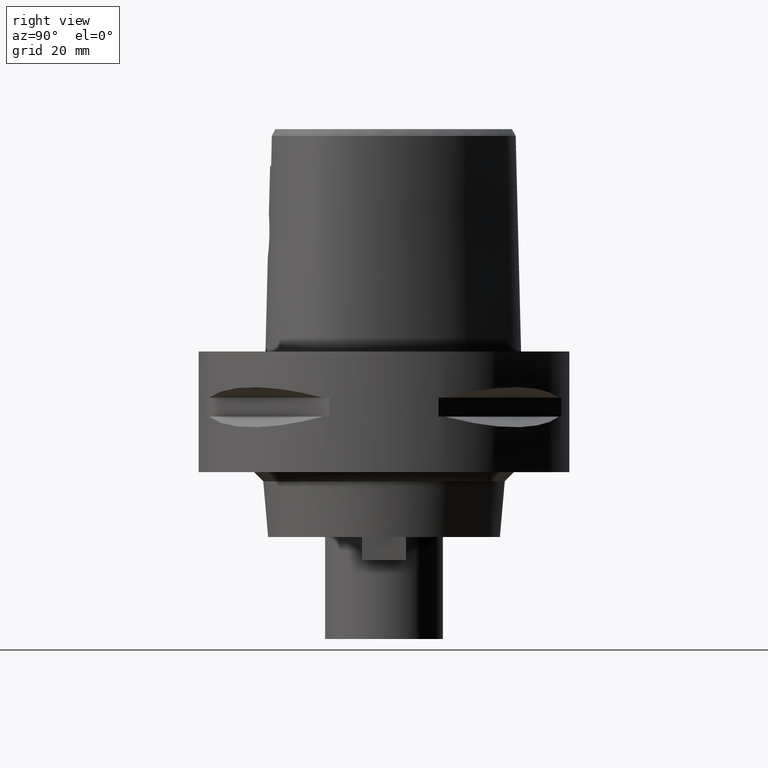
[diagram: clean part render]
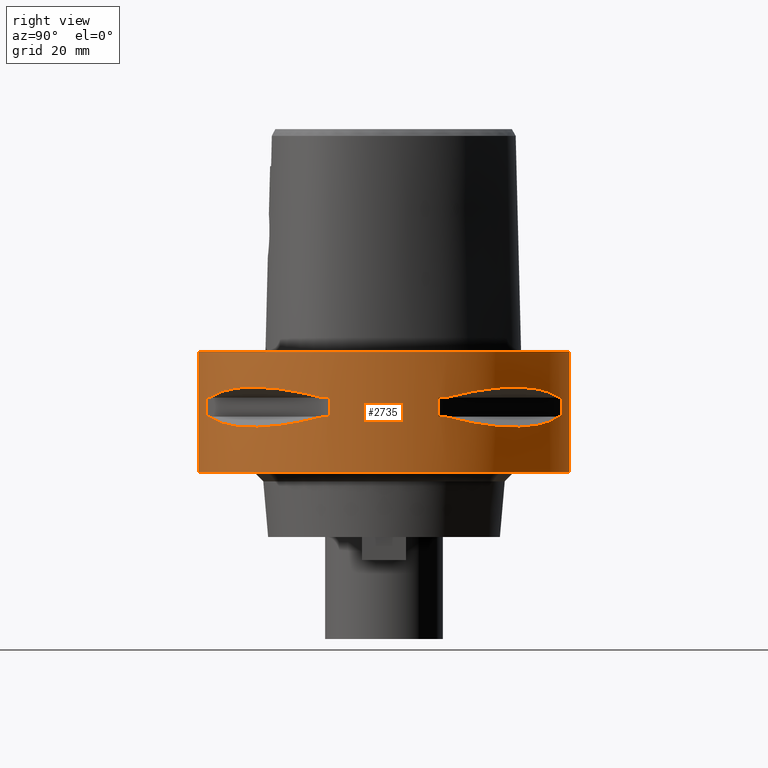
[diagram: same view with one face highlighted and labeled with its STEP entity id]
A machine part, right view. The second image highlights one B-rep face of the part: STEP entity #2735.
In plain terms, the highlighted cylindrical surface (partial cylindrical patch) has radius 40 mm, axis along (0, 0, -1).
Its self-contained STEP definition (entity closure, byte-faithful):
#313=CARTESIAN_POINT('',(0.E0,1.262610849921E-14,0.E0));
#314=DIRECTION('',(0.E0,0.E0,-1.E0));
#315=DIRECTION('',(0.E0,1.E0,0.E0));
#316=AXIS2_PLACEMENT_3D('',#313,#314,#315);
#411=DIRECTION('',(0.E0,0.E0,-1.E0));
#412=VECTOR('',#411,2.6E1);
#413=CARTESIAN_POINT('',(0.E0,-4.E1,0.E0));
#414=LINE('',#413,#412);
#468=DIRECTION('',(0.E0,0.E0,-1.E0));
#469=VECTOR('',#468,2.6E1);
#470=CARTESIAN_POINT('',(0.E0,4.E1,0.E0));
#471=LINE('',#470,#469);
#475=DIRECTION('',(0.E0,0.E0,-1.E0));
#476=VECTOR('',#475,4.1E0);
#477=CARTESIAN_POINT('',(1.176033600281E1,-3.823211342708E1,-9.95E0));
#478=LINE('',#477,#476);
#482=CARTESIAN_POINT('',(1.323717311056E1,-3.774622163927E1,-1.405E1));
#483=CARTESIAN_POINT('',(1.626143876435E1,-3.668564587161E1,-1.485167303901E1));
#484=CARTESIAN_POINT('',(2.171906657626E1,-3.397359084062E1,-1.597254843317E1));
#485=CARTESIAN_POINT('',(2.850324251697E1,-2.850324251697E1,-1.650891631180E1));
#486=CARTESIAN_POINT('',(3.397359084062E1,-2.171906657626E1,-1.597254843317E1));
#487=CARTESIAN_POINT('',(3.668564587161E1,-1.626143876435E1,-1.485167303901E1));
#488=CARTESIAN_POINT('',(3.774622163927E1,-1.323717311056E1,-1.405E1));
#493=DIRECTION('',(0.E0,0.E0,1.E0));
#494=VECTOR('',#493,4.1E0);
#495=CARTESIAN_POINT('',(3.823211342708E1,-1.176033600281E1,-1.405E1));
#496=LINE('',#495,#494);
#500=DIRECTION('',(0.E0,0.E0,-1.E0));
#501=VECTOR('',#500,4.1E0);
#502=CARTESIAN_POINT('',(3.823211342708E1,1.176033600281E1,-9.95E0));
#503=LINE('',#502,#501);
#507=CARTESIAN_POINT('',(3.774622163927E1,1.323717311056E1,-1.405E1));
#508=CARTESIAN_POINT('',(3.668564587161E1,1.626143876435E1,-1.485167303901E1));
#509=CARTESIAN_POINT('',(3.397359084062E1,2.171906657626E1,-1.597254843317E1));
#510=CARTESIAN_POINT('',(2.850324251697E1,2.850324251697E1,-1.650891631180E1));
#511=CARTESIAN_POINT('',(2.171906657626E1,3.397359084062E1,-1.597254843317E1));
#512=CARTESIAN_POINT('',(1.626143876435E1,3.668564587161E1,-1.485167303901E1));
#513=CARTESIAN_POINT('',(1.323717311056E1,3.774622163927E1,-1.405E1));
#518=DIRECTION('',(0.E0,0.E0,1.E0));
#519=VECTOR('',#518,4.1E0);
#520=CARTESIAN_POINT('',(1.176033600281E1,3.823211342708E1,-1.405E1));
#521=LINE('',#520,#519);
#525=CARTESIAN_POINT('',(0.E0,1.262610849921E-14,-2.6E1));
#526=DIRECTION('',(0.E0,0.E0,1.E0));
#527=DIRECTION('',(0.E0,-1.E0,0.E0));
#528=AXIS2_PLACEMENT_3D('',#525,#526,#527);
#1400=CARTESIAN_POINT('',(1.323717311056E1,-3.774622163927E1,
-9.950000000002E0));
#1401=CARTESIAN_POINT('',(1.626143876435E1,-3.668564587161E1,
-9.148326960991E0));
#1402=CARTESIAN_POINT('',(2.171906657626E1,-3.397359084062E1,
-8.027451566833E0));
#1403=CARTESIAN_POINT('',(2.850324251697E1,-2.850324251697E1,
-7.491083688204E0));
#1404=CARTESIAN_POINT('',(3.397359084062E1,-2.171906657626E1,
-8.027451566833E0));
#1405=CARTESIAN_POINT('',(3.668564587161E1,-1.626143876435E1,
-9.148326960991E0));
#1406=CARTESIAN_POINT('',(3.774622163927E1,-1.323717311056E1,
-9.950000000002E0));
#1411=CARTESIAN_POINT('',(0.E0,1.262610849921E-14,-9.95E0));
#1412=DIRECTION('',(0.E0,0.E0,1.E0));
#1413=DIRECTION('',(9.436555409818E-1,-3.309293277639E-1,0.E0));
#1414=AXIS2_PLACEMENT_3D('',#1411,#1412,#1413);
#1419=CARTESIAN_POINT('',(0.E0,1.262610849921E-14,-9.95E0));
#1420=DIRECTION('',(0.E0,0.E0,1.E0));
#1421=DIRECTION('',(2.940084000703E-1,-9.558028356770E-1,0.E0));
#1422=AXIS2_PLACEMENT_3D('',#1419,#1420,#1421);
#1441=CARTESIAN_POINT('',(0.E0,1.262610849921E-14,-1.405E1));
#1442=DIRECTION('',(0.E0,0.E0,-1.E0));
#1443=DIRECTION('',(9.558028356770E-1,-2.940084000703E-1,0.E0));
#1444=AXIS2_PLACEMENT_3D('',#1441,#1442,#1443);
#1449=CARTESIAN_POINT('',(0.E0,1.262610849921E-14,-1.405E1));
#1450=DIRECTION('',(0.E0,0.E0,-1.E0));
#1451=DIRECTION('',(3.309293277639E-1,-9.436555409818E-1,0.E0));
#1452=AXIS2_PLACEMENT_3D('',#1449,#1450,#1451);
#1471=CARTESIAN_POINT('',(3.774622163927E1,1.323717311056E1,-9.950000000002E0));
#1472=CARTESIAN_POINT('',(3.668564587161E1,1.626143876435E1,-9.148326960991E0));
#1473=CARTESIAN_POINT('',(3.397359084062E1,2.171906657626E1,-8.027451566833E0));
#1474=CARTESIAN_POINT('',(2.850324251697E1,2.850324251697E1,-7.491083688204E0));
#1475=CARTESIAN_POINT('',(2.171906657626E1,3.397359084062E1,-8.027451566833E0));
#1476=CARTESIAN_POINT('',(1.626143876435E1,3.668564587161E1,-9.148326960991E0));
#1477=CARTESIAN_POINT('',(1.323717311056E1,3.774622163927E1,-9.950000000002E0));
#1482=CARTESIAN_POINT('',(0.E0,1.262610849921E-14,-9.95E0));
#1483=DIRECTION('',(0.E0,0.E0,1.E0));
#1484=DIRECTION('',(3.309293277639E-1,9.436555409818E-1,0.E0));
#1485=AXIS2_PLACEMENT_3D('',#1482,#1483,#1484);
#1490=CARTESIAN_POINT('',(0.E0,1.262610849921E-14,-9.95E0));
#1491=DIRECTION('',(0.E0,0.E0,1.E0));
#1492=DIRECTION('',(9.558028356770E-1,2.940084000703E-1,0.E0));
#1493=AXIS2_PLACEMENT_3D('',#1490,#1491,#1492);
#1512=CARTESIAN_POINT('',(0.E0,1.262610849921E-14,-1.405E1));
#1513=DIRECTION('',(0.E0,0.E0,-1.E0));
#1514=DIRECTION('',(2.940084000703E-1,9.558028356770E-1,0.E0));
#1515=AXIS2_PLACEMENT_3D('',#1512,#1513,#1514);
#1520=CARTESIAN_POINT('',(0.E0,1.262610849921E-14,-1.405E1));
#1521=DIRECTION('',(0.E0,0.E0,-1.E0));
#1522=DIRECTION('',(9.436555409818E-1,3.309293277639E-1,0.E0));
#1523=AXIS2_PLACEMENT_3D('',#1520,#1521,#1522);
#1706=CARTESIAN_POINT('',(0.E0,-4.E1,0.E0));
#1707=CARTESIAN_POINT('',(0.E0,4.E1,0.E0));
#1708=VERTEX_POINT('',#1706);
#1709=VERTEX_POINT('',#1707);
#1710=CARTESIAN_POINT('',(0.E0,4.E1,-2.6E1));
#1711=VERTEX_POINT('',#1710);
#1712=CARTESIAN_POINT('',(0.E0,-4.E1,-2.6E1));
#1713=VERTEX_POINT('',#1712);
#1740=VERTEX_POINT('',#1400);
#1741=VERTEX_POINT('',#1406);
#1742=CARTESIAN_POINT('',(1.176033600281E1,-3.823211342708E1,-9.95E0));
#1743=VERTEX_POINT('',#1742);
#1744=CARTESIAN_POINT('',(1.176033600281E1,-3.823211342708E1,-1.405E1));
#1745=VERTEX_POINT('',#1744);
#1746=CARTESIAN_POINT('',(1.323717311056E1,-3.774622163927E1,-1.405E1));
#1747=VERTEX_POINT('',#1746);
#1748=VERTEX_POINT('',#488);
#1749=CARTESIAN_POINT('',(3.823211342708E1,-1.176033600281E1,-1.405E1));
#1750=VERTEX_POINT('',#1749);
#1751=CARTESIAN_POINT('',(3.823211342708E1,-1.176033600281E1,-9.95E0));
#1752=VERTEX_POINT('',#1751);
#1753=VERTEX_POINT('',#1471);
#1754=VERTEX_POINT('',#1477);
#1755=CARTESIAN_POINT('',(3.823211342708E1,1.176033600281E1,-9.95E0));
#1756=VERTEX_POINT('',#1755);
#1757=CARTESIAN_POINT('',(3.823211342708E1,1.176033600281E1,-1.405E1));
#1758=VERTEX_POINT('',#1757);
#1759=CARTESIAN_POINT('',(3.774622163927E1,1.323717311056E1,-1.405E1));
#1760=VERTEX_POINT('',#1759);
#1761=VERTEX_POINT('',#513);
#1762=CARTESIAN_POINT('',(1.176033600281E1,3.823211342708E1,-1.405E1));
#1763=VERTEX_POINT('',#1762);
#1764=CARTESIAN_POINT('',(1.176033600281E1,3.823211342708E1,-9.95E0));
#1765=VERTEX_POINT('',#1764);
#2687=CARTESIAN_POINT('',(0.E0,1.262610849921E-14,3.1E0));
#2688=DIRECTION('',(0.E0,0.E0,-1.E0));
#2689=DIRECTION('',(0.E0,-1.E0,0.E0));
#2690=AXIS2_PLACEMENT_3D('',#2687,#2688,#2689);
#2691=CYLINDRICAL_SURFACE('',#2690,4.E1);
#2692=ORIENTED_EDGE('',*,*,#2641,.T.);
#2694=ORIENTED_EDGE('',*,*,#2693,.F.);
#2695=ORIENTED_EDGE('',*,*,#2644,.F.);
#2696=ORIENTED_EDGE('',*,*,#2626,.F.);
#2697=EDGE_LOOP('',(#2692,#2694,#2695,#2696));
#2698=FACE_OUTER_BOUND('',#2697,.F.);
#2700=ORIENTED_EDGE('',*,*,#2699,.F.);
#2702=ORIENTED_EDGE('',*,*,#2701,.F.);
#2704=ORIENTED_EDGE('',*,*,#2703,.T.);
#2706=ORIENTED_EDGE('',*,*,#2705,.F.);
#2708=ORIENTED_EDGE('',*,*,#2707,.T.);
#2710=ORIENTED_EDGE('',*,*,#2709,.F.);
#2712=ORIENTED_EDGE('',*,*,#2711,.T.);
#2714=ORIENTED_EDGE('',*,*,#2713,.F.);
#2715=EDGE_LOOP('',(#2700,#2702,#2704,#2706,#2708,#2710,#2712,#2714));
#2716=FACE_BOUND('',#2715,.F.);
#2718=ORIENTED_EDGE('',*,*,#2717,.F.);
#2720=ORIENTED_EDGE('',*,*,#2719,.F.);
#2722=ORIENTED_EDGE('',*,*,#2721,.T.);
#2724=ORIENTED_EDGE('',*,*,#2723,.F.);
#2726=ORIENTED_EDGE('',*,*,#2725,.T.);
#2728=ORIENTED_EDGE('',*,*,#2727,.F.);
#2730=ORIENTED_EDGE('',*,*,#2729,.T.);
#2732=ORIENTED_EDGE('',*,*,#2731,.F.);
#2733=EDGE_LOOP('',(#2718,#2720,#2722,#2724,#2726,#2728,#2730,#2732));
#2734=FACE_BOUND('',#2733,.F.);
#317=CIRCLE('',#316,4.E1);
#489=B_SPLINE_CURVE_WITH_KNOTS('',3,(#482,#483,#484,#485,#486,#487,#488),
.UNSPECIFIED.,.F.,.F.,(4,1,1,1,4),(0.E0,2.5E-1,5.E-1,7.5E-1,1.E0),
.UNSPECIFIED.);
#514=B_SPLINE_CURVE_WITH_KNOTS('',3,(#507,#508,#509,#510,#511,#512,#513),
.UNSPECIFIED.,.F.,.F.,(4,1,1,1,4),(0.E0,2.5E-1,5.E-1,7.5E-1,1.E0),
.UNSPECIFIED.);
#529=CIRCLE('',#528,4.E1);
#1407=B_SPLINE_CURVE_WITH_KNOTS('',3,(#1400,#1401,#1402,#1403,#1404,#1405,
#1406),.UNSPECIFIED.,.F.,.F.,(4,1,1,1,4),(0.E0,2.5E-1,5.E-1,7.5E-1,1.E0),
.UNSPECIFIED.);
#1415=CIRCLE('',#1414,4.E1);
#1423=CIRCLE('',#1422,4.E1);
#1445=CIRCLE('',#1444,4.E1);
#1453=CIRCLE('',#1452,4.E1);
#1478=B_SPLINE_CURVE_WITH_KNOTS('',3,(#1471,#1472,#1473,#1474,#1475,#1476,
#1477),.UNSPECIFIED.,.F.,.F.,(4,1,1,1,4),(0.E0,2.5E-1,5.E-1,7.5E-1,1.E0),
.UNSPECIFIED.);
#1486=CIRCLE('',#1485,4.E1);
#1494=CIRCLE('',#1493,4.E1);
#1516=CIRCLE('',#1515,4.E1);
#1524=CIRCLE('',#1523,4.E1);
#2626=EDGE_CURVE('',#1709,#1708,#317,.T.);
#2641=EDGE_CURVE('',#1709,#1711,#471,.T.);
#2644=EDGE_CURVE('',#1708,#1713,#414,.T.);
#2693=EDGE_CURVE('',#1713,#1711,#529,.T.);
#2699=EDGE_CURVE('',#1740,#1741,#1407,.T.);
#2701=EDGE_CURVE('',#1743,#1740,#1423,.T.);
#2703=EDGE_CURVE('',#1743,#1745,#478,.T.);
#2705=EDGE_CURVE('',#1747,#1745,#1453,.T.);
#2707=EDGE_CURVE('',#1747,#1748,#489,.T.);
#2709=EDGE_CURVE('',#1750,#1748,#1445,.T.);
#2711=EDGE_CURVE('',#1750,#1752,#496,.T.);
#2713=EDGE_CURVE('',#1741,#1752,#1415,.T.);
#2717=EDGE_CURVE('',#1753,#1754,#1478,.T.);
#2719=EDGE_CURVE('',#1756,#1753,#1494,.T.);
#2721=EDGE_CURVE('',#1756,#1758,#503,.T.);
#2723=EDGE_CURVE('',#1760,#1758,#1524,.T.);
#2725=EDGE_CURVE('',#1760,#1761,#514,.T.);
#2727=EDGE_CURVE('',#1763,#1761,#1516,.T.);
#2729=EDGE_CURVE('',#1763,#1765,#521,.T.);
#2731=EDGE_CURVE('',#1754,#1765,#1486,.T.);
#2735=ADVANCED_FACE('',(#2698,#2716,#2734),#2691,.T.);